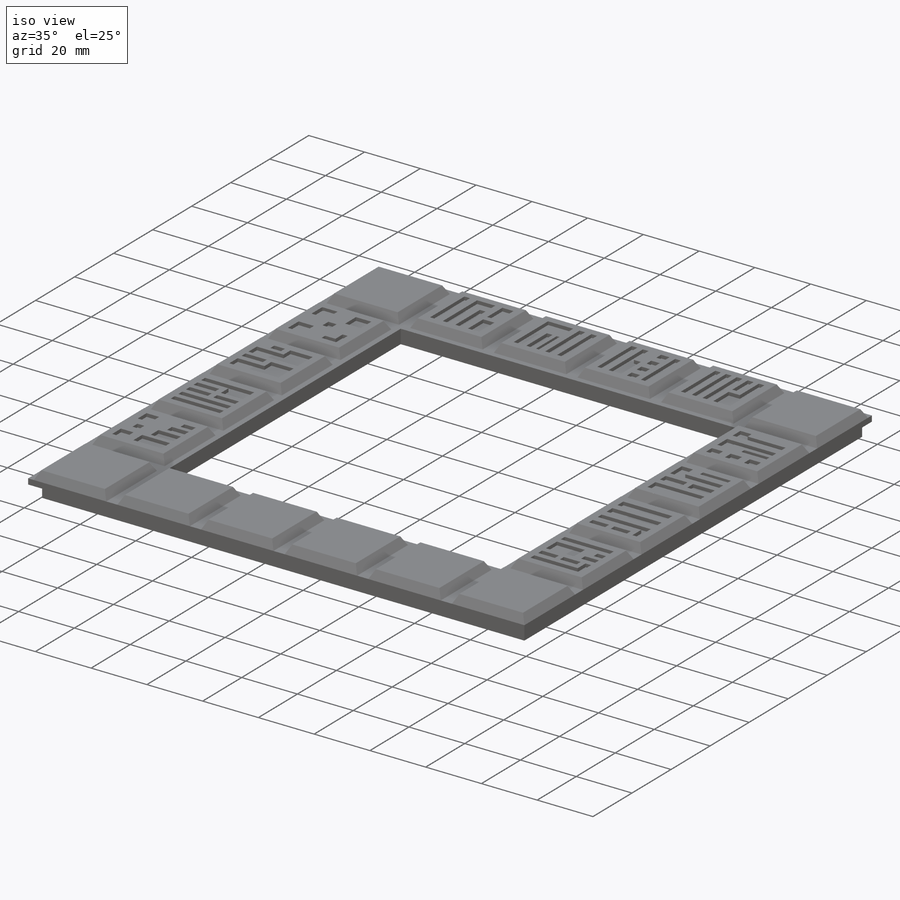
[diagram: iso view]
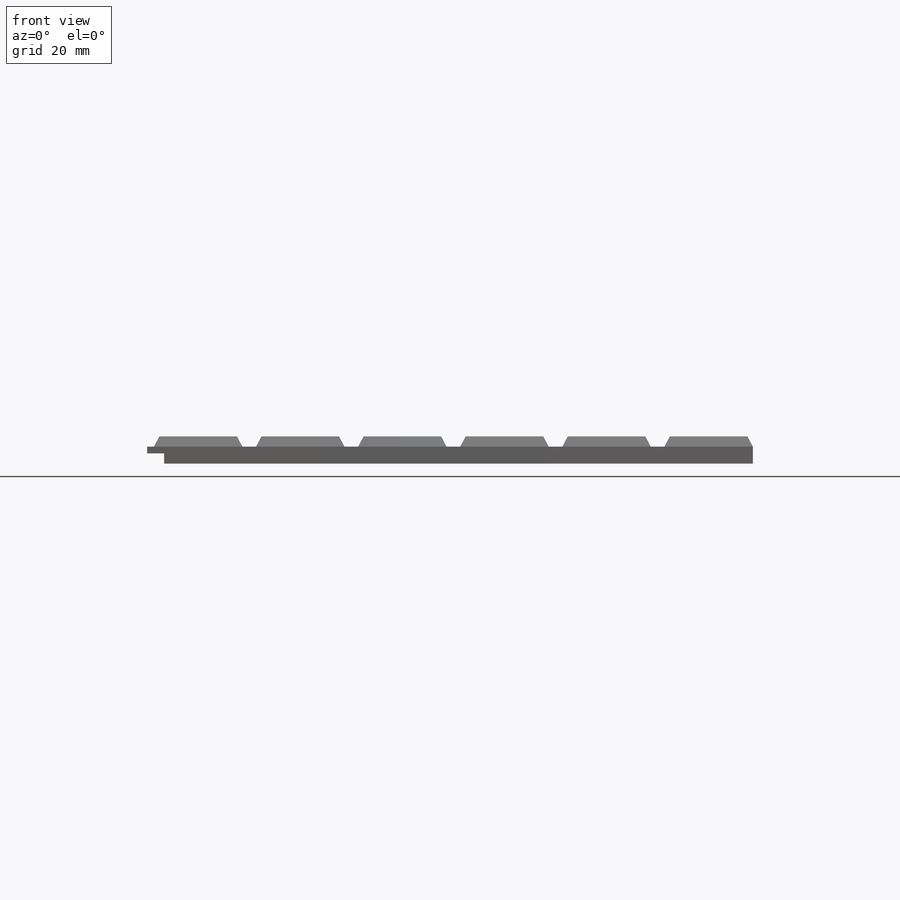
[diagram: front view]
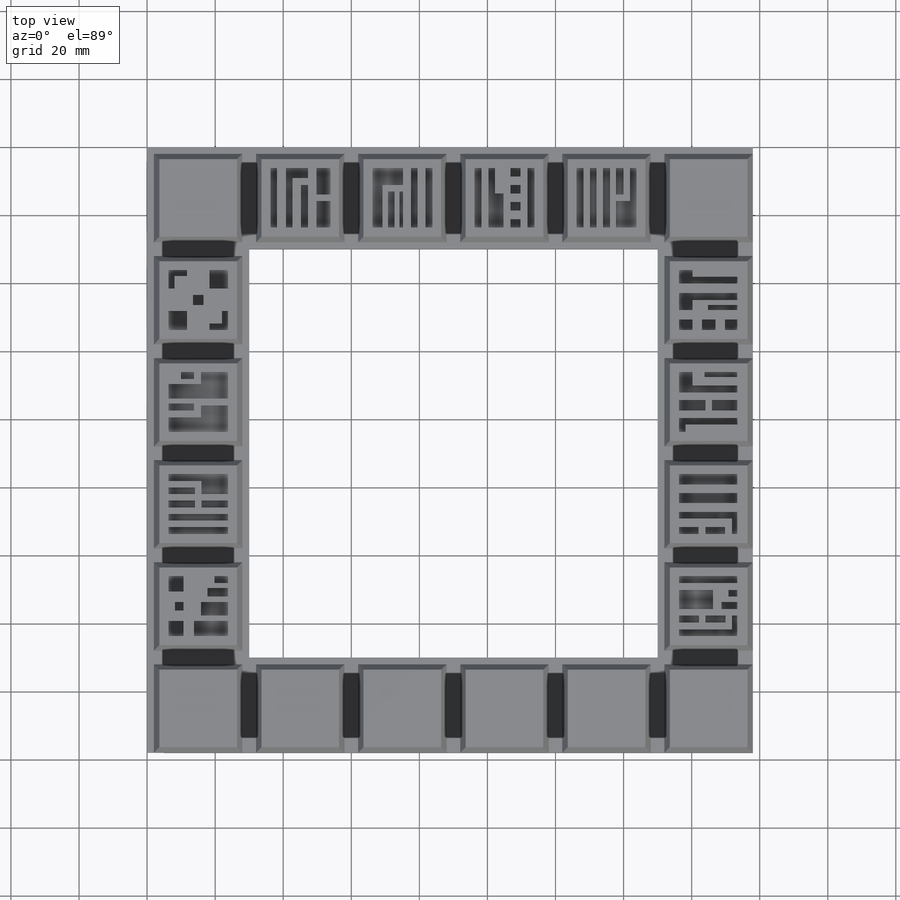
[diagram: top view]
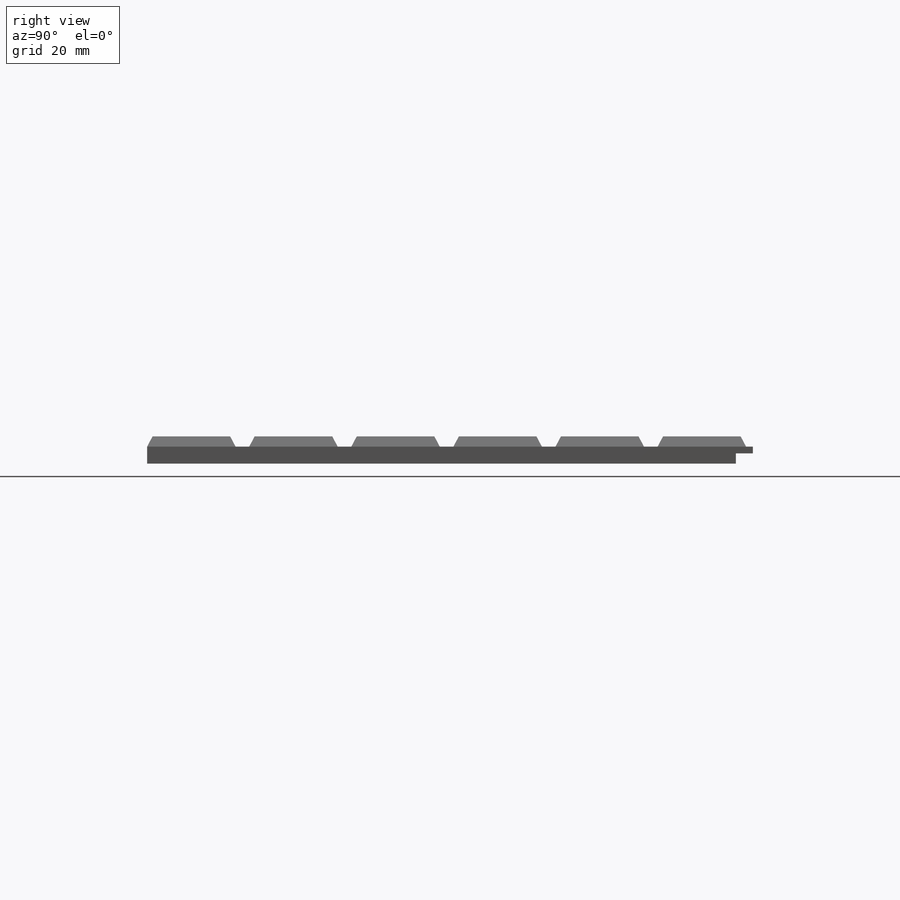
[diagram: right view]
SOLIDWORKS PART (.sldprt)
format: sldprt  version: not decoded by parser v0  size: 1,041,920 bytes
history: native  units: mm
features: sketch x8, cut_extrude x6, extrude x2, material x1, chamfer x1 (+11 scaffold rows collapsed)
feature tree (29):
  scaffold x11  (default folders/planes/origin — collapsed)
  material  "Material <not specified>"
  sketch  "Sketch1"  dims[D1=180.0mm D2=180.0mm]
  extrude  "Boss-Extrude1"  Depth=5mm
  sketch  "Sketch2"  dims[D1=120.0mm D2=120.0mm D3=30.0mm D4=30.0mm]
  cut_extrude  "Cut-Extrude1"  [1 undecoded]
  sketch  "Sketch3"  dims[D1=26.0mm D2=2.0mm D3=2.0mm D4=4.0mm D5=2.0mm D6=4.0mm D7=4.0mm D8=4.0mm D9=4.0mm D10=4.0mm D11=2.0mm D12=4.0mm D13=4.0mm D14=4.0mm]
  extrude  "Boss-Extrude2"  Depth=3mm
  chamfer  "Chamfer1"  Distance=3mm
  sketch  "Sketch4"  dims[c1.D1=2.6mm c1.D2=2.6mm c1.D3=2.6mm c1.D4=2.6mm c1.D5=2.6mm c1.D6=2.0mm c1.D7=2.0mm c1.D8=2.0mm c1.D9=1.0mm c1.D10=2.0mm c1.D11=2.0mm c1.D12=2.6mm c1.D13=2.6mm c1.D14=2.6mm c1.D15=2.6mm c1.D16=2.0mm c1.D17=2.0mm c1.D18=2.5mm c1.D19=2.0mm c1.D20=2.5mm c1.D21=2.5mm c1.D22=2.5mm c1.D23=2.6mm c1.D24=2.6mm c1.D25=2.5mm c1.D26=2.5mm c1.D27=2.0mm c1.D28=3.0mm c1.D29=2.0mm c1.D30=2.0mm c1.D31=4.0mm c1.D32=4.0mm c1.D33=3.0mm c1.D34=6.0mm c1.D35=1.5mm c1.D36=5.0mm c1.D37=2.0mm c1.D38=2.0mm c1.D39=2.0mm c1.D40=16.8mm c2.D39=2.0mm c2.D40=2.3mm c2.D21=3.0mm c2.D22=2.0mm c3.D40=2.5mm c3.D25=2.0mm c3.D39=2.0mm c3.D41=2.0mm c3.D42=2.0mm c3.D43=4.0mm]
  cut_extrude  "Motifs_Ligne_1"  Depth=1.2mm
  sketch  "Sketch5"  dims[D1=5.0mm D2=5.0mm D3=0.0mm D4=0.0mm]
  cut_extrude  "Cut-Extrude3"  Depth=3mm
  sketch  "Sketch6"  dims[D1=2.0mm D2=2.0mm]
  cut_extrude  "Cut-Extrude4"  [1 undecoded]
  sketch  "Sketch7"  dims[c1.D1=2.6mm c1.D2=2.6mm c1.D3=2.6mm c1.D4=2.6mm c1.D5=2.6mm c1.D6=2.6mm c1.D7=2.6mm c1.D8=2.6mm c1.D9=2.6mm c1.D10=2.6mm c1.D11=1.8mm c1.D12=5.5mm c1.D13=3.0mm c1.D14=3.0mm c2.D13=1.5mm c2.D15=2.0mm c2.D16=2.0mm c2.D17=2.0mm c2.D18=8.0mm c2.D19=2.0mm c2.D20=3.8mm c2.D21=2.0mm c2.D22=2.0mm c2.D23=2.0mm c3.D22=2.0mm c3.D24=2.5mm c3.D25=4.0mm c3.D26=4.5mm c3.D27=10.0mm c3.D28=8.0mm c3.D29=6.0mm c3.D30=4.0mm c3.D31=2.5mm c3.D32=4.5mm]
  cut_extrude  "Cut-Extrude5"  Depth=1.2mm
  sketch  "Sketch8"  dims[D1=2.6mm D2=2.6mm D3=2.6mm D4=2.6mm D5=2.6mm D6=2.6mm D7=2.6mm D8=2.6mm D9=2.6mm D10=2.6mm D11=3.0mm D12=2.0mm D13=2.0mm D14=2.0mm D15=2.0mm D16=2.0mm D17=2.0mm D18=2.0mm D19=2.0mm D20=2.0mm D21=10.0mm D22=6.0mm D23=2.0mm D24=5.0mm D25=3.0mm D26=2.0mm D27=2.0mm D28=2.0mm D29=1.5mm D30=2.0mm D31=3.0mm D32=10.0mm D33=4.0mm D34=~4.104877mm D35=6.0mm D36=2.0mm D37=4.0mm D38=4.0mm D39=4.0mm D40=5.0mm D41=2.0mm D42=3.0mm D43=4.0mm D44=9.0mm D45=1.5mm]
  cut_extrude  "Cut-Extrude6"  Depth=1.2mm
decode coverage: 15 of 17 modeling features carry decoded parameters
note: ~ marks probable driven/reference dimensions
note: 2 parameter values undecoded
note: suppression state not decoded; provenance and decode notes live in map.json
